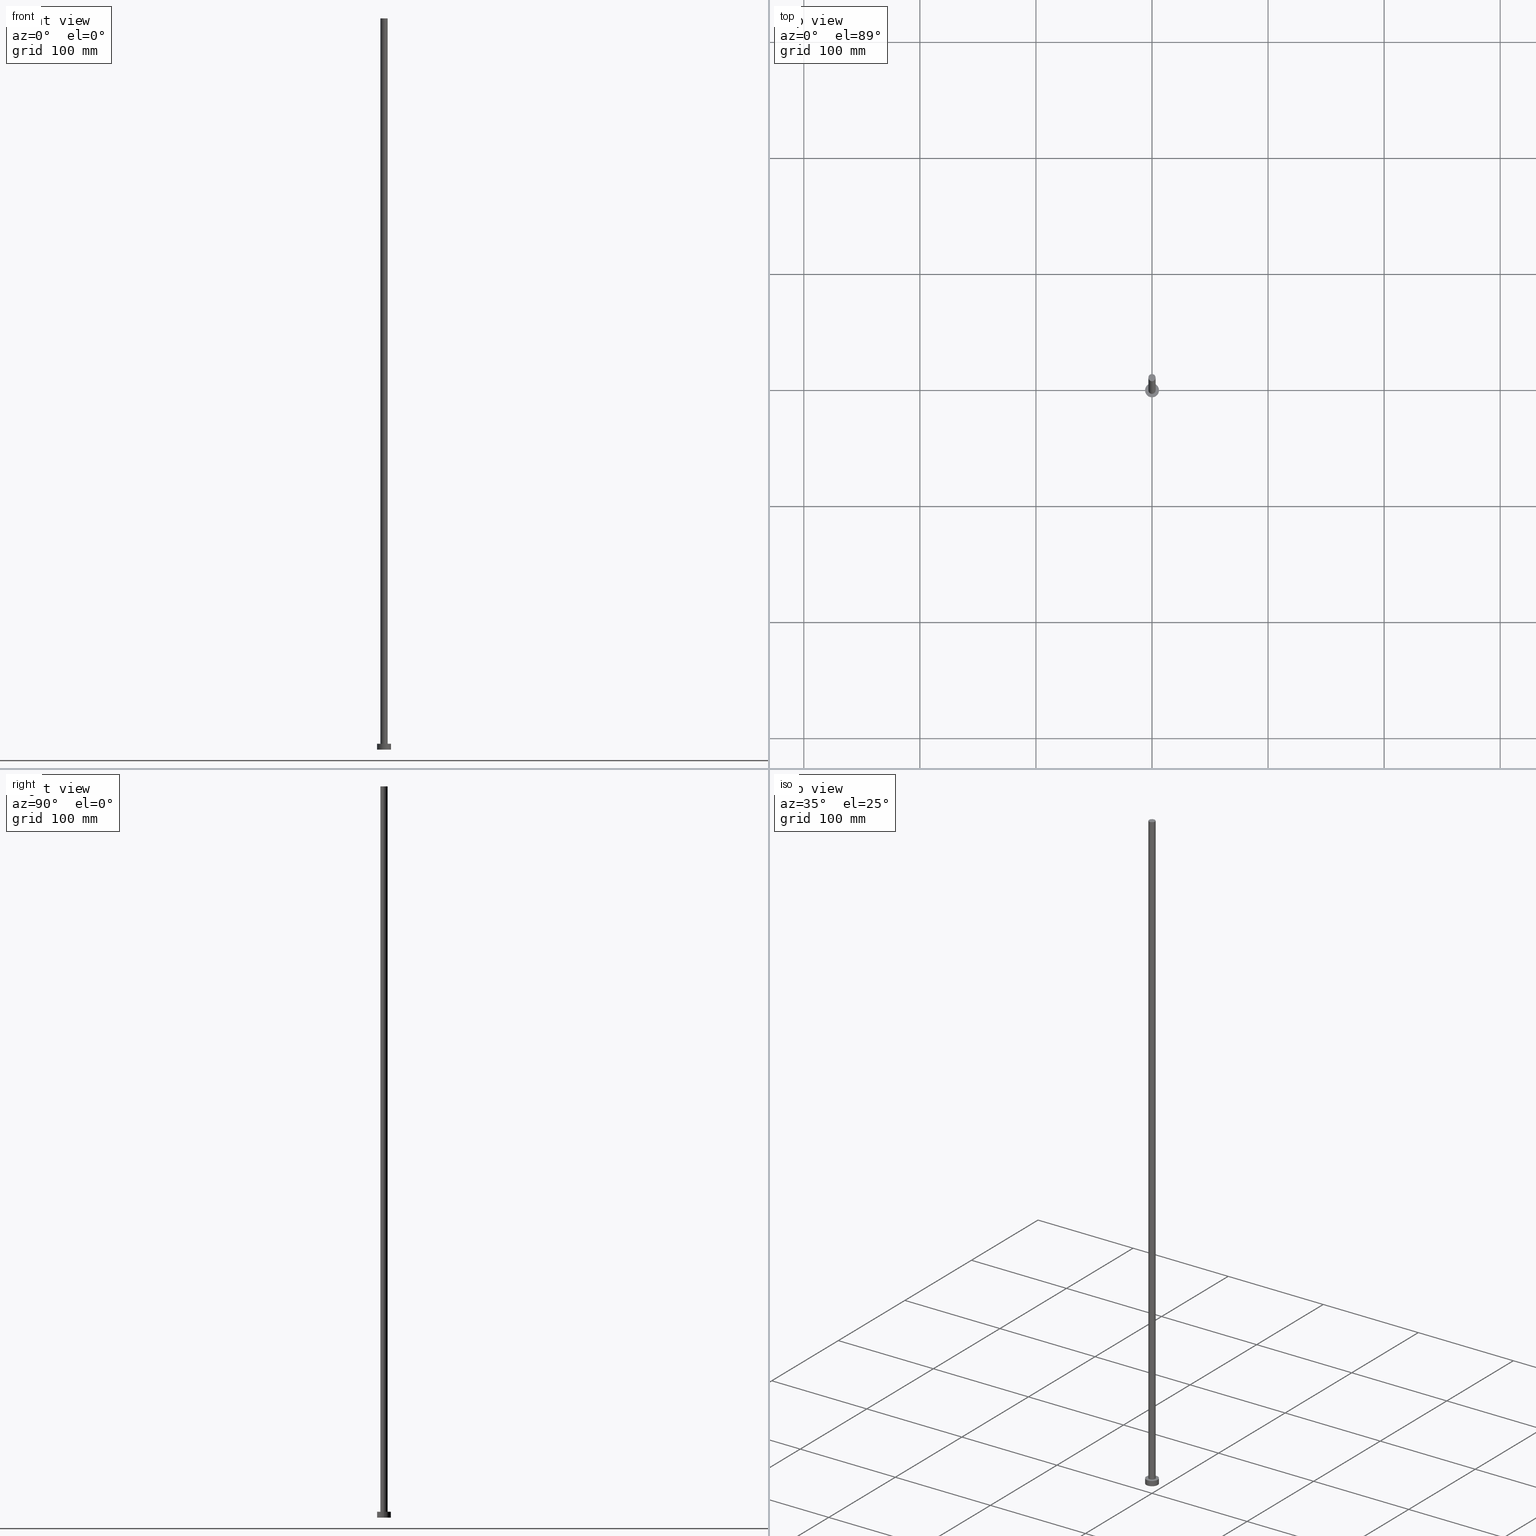
[diagram: canonical four-view strip — front | top / right | iso, engineering-drawing reading convention]
A machine part, canonical four-view strip (front | top / right | iso — engineering-drawing reading convention). The complete STEP part file that produces these views, byte-faithful:
ISO-10303-21;
HEADER;
FILE_DESCRIPTION (( 'STEP AP203' ),
    '1' );
FILE_NAME ('4c19.STEP',
    '2026-02-06T12:39:51',
    ( '' ),
    ( '' ),
    'SwSTEP 2.0',
    'SolidWorks 2019',
    '' );
FILE_SCHEMA (( 'CONFIG_CONTROL_DESIGN' ));
ENDSEC;

DATA;
#1 = VECTOR ( 'NONE', #219, 1000.000000000000000 ) ;
#2 = DIRECTION ( 'NONE',  ( 1.000000000000000000, 0.000000000000000000, 0.000000000000000000 ) ) ;
#3 = DATE_AND_TIME ( #58, #252 ) ;
#4 = ORIENTED_EDGE ( 'NONE', *, *, #133, .T. ) ;
#5 = CC_DESIGN_PERSON_AND_ORGANIZATION_ASSIGNMENT ( #139, #29, ( #70 ) ) ;
#6 = ORIENTED_EDGE ( 'NONE', *, *, #61, .F. ) ;
#7 = DATE_AND_TIME ( #103, #78 ) ;
#8 = ORIENTED_EDGE ( 'NONE', *, *, #104, .T. ) ;
#9 = DATE_TIME_ROLE ( 'creation_date' ) ;
#10 = AXIS2_PLACEMENT_3D ( 'NONE', #114, #112, #126 ) ;
#11 =( NAMED_UNIT ( * ) SI_UNIT ( $, .STERADIAN. ) SOLID_ANGLE_UNIT ( ) );
#12 = ORIENTED_EDGE ( 'NONE', *, *, #133, .F. ) ;
#13 = SECURITY_CLASSIFICATION_LEVEL ( 'unclassified' ) ;
#14 = APPROVAL_DATE_TIME ( #146, #221 ) ;
#15 = APPLICATION_CONTEXT ( 'configuration controlled 3d designs of mechanical parts and assemblies' ) ;
#16 = AXIS2_PLACEMENT_3D ( 'NONE', #94, #90, #208 ) ;
#17 = APPROVAL_DATE_TIME ( #187, #198 ) ;
#18 = ADVANCED_FACE ( 'NONE', ( #138 ), #84, .T. ) ;
#19 =( LENGTH_UNIT ( ) NAMED_UNIT ( * ) SI_UNIT ( .MILLI., .METRE. ) );
#20 = CC_DESIGN_PERSON_AND_ORGANIZATION_ASSIGNMENT ( #110, #160, ( #115 ) ) ;
#21 = CARTESIAN_POINT ( 'NONE',  ( 0.000000000000000000, 0.000000000000000000, 5.000000000000000000 ) ) ;
#22 = FACE_BOUND ( 'NONE', #243, .T. ) ;
#23 = CARTESIAN_POINT ( 'NONE',  ( 0.000000000000000000, 0.000000000000000000, 5.000000000000000000 ) ) ;
#24 = CARTESIAN_POINT ( 'NONE',  ( 0.000000000000000000, 0.000000000000000000, 5.000000000000000000 ) ) ;
#25 = CC_DESIGN_APPROVAL ( #221, ( #115 ) ) ;
#26 = PERSON_AND_ORGANIZATION ( #188, #230 ) ;
#27 = VERTEX_POINT ( 'NONE', #54 ) ;
#28 = ORIENTED_EDGE ( 'NONE', *, *, #86, .T. ) ;
#29 = PERSON_AND_ORGANIZATION_ROLE ( 'creator' ) ;
#30 = AXIS2_PLACEMENT_3D ( 'NONE', #23, #169, #55 ) ;
#31 = ORIENTED_EDGE ( 'NONE', *, *, #45, .F. ) ;
#32 = APPROVAL_STATUS ( 'not_yet_approved' ) ;
#33 =( NAMED_UNIT ( * ) PLANE_ANGLE_UNIT ( ) SI_UNIT ( $, .RADIAN. ) );
#34 = DATE_AND_TIME ( #183, #237 ) ;
#35 = CARTESIAN_POINT ( 'NONE',  ( -6.000000000000000888, 0.000000000000000000, 0.000000000000000000 ) ) ;
#36 = EDGE_CURVE ( 'NONE', #245, #162, #158, .T. ) ;
#37 = CC_DESIGN_DATE_AND_TIME_ASSIGNMENT ( #7, #9, ( #70 ) ) ;
#38 = FACE_OUTER_BOUND ( 'NONE', #229, .T. ) ;
#39 = DIRECTION ( 'NONE',  ( 1.000000000000000000, 0.000000000000000000, 0.000000000000000000 ) ) ;
#40 = LINE ( 'NONE', #42, #62 ) ;
#41 = COORDINATED_UNIVERSAL_TIME_OFFSET ( 1, 0, .AHEAD. ) ;
#42 = CARTESIAN_POINT ( 'NONE',  ( -3.100000000000000089, 0.000000000000000000, 630.0000000000000000 ) ) ;
#43 = VECTOR ( 'NONE', #191, 1000.000000000000000 ) ;
#44 = ORIENTED_EDGE ( 'NONE', *, *, #124, .T. ) ;
#45 = EDGE_CURVE ( 'NONE', #245, #203, #147, .T. ) ;
#46 = COORDINATED_UNIVERSAL_TIME_OFFSET ( 1, 0, .AHEAD. ) ;
#47 = VERTEX_POINT ( 'NONE', #255 ) ;
#48 = COORDINATED_UNIVERSAL_TIME_OFFSET ( 1, 0, .AHEAD. ) ;
#49 = VECTOR ( 'NONE', #73, 1000.000000000000000 ) ;
#50 = PERSON_AND_ORGANIZATION ( #188, #230 ) ;
#51 = PERSON_AND_ORGANIZATION_ROLE ( 'design_supplier' ) ;
#52 = CARTESIAN_POINT ( 'NONE',  ( -3.100000000000000089, 0.000000000000000000, 630.0000000000000000 ) ) ;
#53 = DIRECTION ( 'NONE',  ( 1.000000000000000000, 0.000000000000000000, 0.000000000000000000 ) ) ;
#54 = CARTESIAN_POINT ( 'NONE',  ( 3.100000000000000089, 3.796405077356794918E-16, 630.0000000000000000 ) ) ;
#55 = DIRECTION ( 'NONE',  ( -1.000000000000000000, 0.000000000000000000, 0.000000000000000000 ) ) ;
#56 = CARTESIAN_POINT ( 'NONE',  ( -6.000000000000000888, 0.000000000000000000, 5.000000000000000000 ) ) ;
#57 = CYLINDRICAL_SURFACE ( 'NONE', #72, 3.100000000000000089 ) ;
#58 = CALENDAR_DATE ( 2026, 6, 2 ) ;
#59 = DIRECTION ( 'NONE',  ( 0.000000000000000000, 0.000000000000000000, 1.000000000000000000 ) ) ;
#60 = ORIENTED_EDGE ( 'NONE', *, *, #111, .T. ) ;
#61 = EDGE_CURVE ( 'NONE', #27, #47, #119, .T. ) ;
#62 = VECTOR ( 'NONE', #134, 1000.000000000000000 ) ;
#63 = APPROVAL_STATUS ( 'not_yet_approved' ) ;
#64 = ADVANCED_FACE ( 'NONE', ( #95 ), #57, .T. ) ;
#65 = EDGE_LOOP ( 'NONE', ( #8, #185 ) ) ;
#66 = EDGE_LOOP ( 'NONE', ( #226, #12 ) ) ;
#67 = AXIS2_PLACEMENT_3D ( 'NONE', #98, #74, #118 ) ;
#68 = DIRECTION ( 'NONE',  ( 0.000000000000000000, 0.000000000000000000, 1.000000000000000000 ) ) ;
#69 = CALENDAR_DATE ( 2026, 6, 2 ) ;
#70 = PRODUCT_DEFINITION ( 'NEZN�M�', '', #115, #154 ) ;
#71 = DIRECTION ( 'NONE',  ( 0.000000000000000000, 0.000000000000000000, 1.000000000000000000 ) ) ;
#72 = AXIS2_PLACEMENT_3D ( 'NONE', #235, #130, #215 ) ;
#73 = DIRECTION ( 'NONE',  ( -0.000000000000000000, -0.000000000000000000, -1.000000000000000000 ) ) ;
#74 = DIRECTION ( 'NONE',  ( 0.000000000000000000, 0.000000000000000000, 1.000000000000000000 ) ) ;
#75 = EDGE_CURVE ( 'NONE', #162, #176, #249, .T. ) ;
#76 = DIRECTION ( 'NONE',  ( 0.000000000000000000, 0.000000000000000000, 1.000000000000000000 ) ) ;
#77 = DIRECTION ( 'NONE',  ( 0.000000000000000000, 0.000000000000000000, 1.000000000000000000 ) ) ;
#78 = LOCAL_TIME ( 13, 39, 51.00000000000000000, #46 ) ;
#79 = CC_DESIGN_PERSON_AND_ORGANIZATION_ASSIGNMENT ( #157, #81, ( #96 ) ) ;
#80 = CIRCLE ( 'NONE', #117, 3.100000000000000089 ) ;
#81 = PERSON_AND_ORGANIZATION_ROLE ( 'design_owner' ) ;
#82 = AXIS2_PLACEMENT_3D ( 'NONE', #231, #68, #53 ) ;
#83 = ORIENTED_EDGE ( 'NONE', *, *, #150, .T. ) ;
#84 = CYLINDRICAL_SURFACE ( 'NONE', #30, 6.000000000000000888 ) ;
#85 = ORIENTED_EDGE ( 'NONE', *, *, #75, .T. ) ;
#86 = EDGE_CURVE ( 'NONE', #177, #107, #40, .T. ) ;
#87 = EDGE_LOOP ( 'NONE', ( #225, #102, #4, #181 ) ) ;
#88 = CC_DESIGN_SECURITY_CLASSIFICATION ( #163, ( #115 ) ) ;
#89 = PLANE ( 'NONE',  #242 ) ;
#90 = DIRECTION ( 'NONE',  ( -0.000000000000000000, -0.000000000000000000, -1.000000000000000000 ) ) ;
#91 = APPROVAL_ROLE ( '' ) ;
#92 = FACE_OUTER_BOUND ( 'NONE', #178, .T. ) ;
#93 = DIRECTION ( 'NONE',  ( 0.000000000000000000, 0.000000000000000000, 1.000000000000000000 ) ) ;
#94 = CARTESIAN_POINT ( 'NONE',  ( 0.000000000000000000, 0.000000000000000000, 630.0000000000000000 ) ) ;
#95 = FACE_OUTER_BOUND ( 'NONE', #202, .T. ) ;
#96 = PRODUCT ( '4c19', '4c19', '', ( #99 ) ) ;
#97 = PLANE ( 'NONE',  #179 ) ;
#98 = CARTESIAN_POINT ( 'NONE',  ( 0.000000000000000000, 0.000000000000000000, 0.000000000000000000 ) ) ;
#99 = MECHANICAL_CONTEXT ( 'NONE', #15, 'mechanical' ) ;
#100 = ADVANCED_FACE ( 'NONE', ( #22, #38 ), #97, .T. ) ;
#101 = ORIENTED_EDGE ( 'NONE', *, *, #111, .F. ) ;
#102 = ORIENTED_EDGE ( 'NONE', *, *, #45, .T. ) ;
#103 = CALENDAR_DATE ( 2026, 6, 2 ) ;
#104 = EDGE_CURVE ( 'NONE', #177, #27, #222, .T. ) ;
#105 = CIRCLE ( 'NONE', #205, 3.100000000000000089 ) ;
#106 = COORDINATED_UNIVERSAL_TIME_OFFSET ( 1, 0, .AHEAD. ) ;
#107 = VERTEX_POINT ( 'NONE', #171 ) ;
#108 = DATE_TIME_ROLE ( 'classification_date' ) ;
#109 = FACE_OUTER_BOUND ( 'NONE', #66, .T. ) ;
#110 = PERSON_AND_ORGANIZATION ( #188, #230 ) ;
#111 = EDGE_CURVE ( 'NONE', #107, #47, #105, .T. ) ;
#112 = DIRECTION ( 'NONE',  ( -0.000000000000000000, -0.000000000000000000, -1.000000000000000000 ) ) ;
#113 = COORDINATED_UNIVERSAL_TIME_OFFSET ( 1, 0, .AHEAD. ) ;
#114 = CARTESIAN_POINT ( 'NONE',  ( 0.000000000000000000, 0.000000000000000000, 5.000000000000000000 ) ) ;
#115 = PRODUCT_DEFINITION_FORMATION_WITH_SPECIFIED_SOURCE ( 'LIBOVOLN�', '', #96, .NOT_KNOWN. ) ;
#116 = CARTESIAN_POINT ( 'NONE',  ( 0.000000000000000000, 0.000000000000000000, 5.000000000000000000 ) ) ;
#117 = AXIS2_PLACEMENT_3D ( 'NONE', #238, #213, #251 ) ;
#118 = DIRECTION ( 'NONE',  ( 1.000000000000000000, 0.000000000000000000, 0.000000000000000000 ) ) ;
#119 = LINE ( 'NONE', #152, #1 ) ;
#120 = DIRECTION ( 'NONE',  ( 1.000000000000000000, 0.000000000000000000, -0.000000000000000000 ) ) ;
#121 = UNCERTAINTY_MEASURE_WITH_UNIT (LENGTH_MEASURE( 1.000000000000000082E-05 ), #19, 'distance_accuracy_value', 'NONE');
#122 = ORIENTED_EDGE ( 'NONE', *, *, #150, .F. ) ;
#123 = APPROVAL_DATE_TIME ( #3, #211 ) ;
#124 = EDGE_CURVE ( 'NONE', #162, #245, #250, .T. ) ;
#125 = ORIENTED_EDGE ( 'NONE', *, *, #241, .T. ) ;
#126 = DIRECTION ( 'NONE',  ( -1.000000000000000000, 0.000000000000000000, 0.000000000000000000 ) ) ;
#127 = CALENDAR_DATE ( 2026, 6, 2 ) ;
#128 = CYLINDRICAL_SURFACE ( 'NONE', #10, 6.000000000000000888 ) ;
#129 = CARTESIAN_POINT ( 'NONE',  ( 6.000000000000000888, 7.347880794884120722E-16, 5.000000000000000000 ) ) ;
#130 = DIRECTION ( 'NONE',  ( -0.000000000000000000, -0.000000000000000000, -1.000000000000000000 ) ) ;
#131 = EDGE_CURVE ( 'NONE', #27, #177, #80, .T. ) ;
#132 = CARTESIAN_POINT ( 'NONE',  ( 0.000000000000000000, 0.000000000000000000, 5.000000000000000000 ) ) ;
#133 = EDGE_CURVE ( 'NONE', #203, #176, #175, .T. ) ;
#134 = DIRECTION ( 'NONE',  ( -0.000000000000000000, -0.000000000000000000, -1.000000000000000000 ) ) ;
#135 = AXIS2_PLACEMENT_3D ( 'NONE', #153, #77, #192 ) ;
#136 = CARTESIAN_POINT ( 'NONE',  ( 0.000000000000000000, 0.000000000000000000, 0.000000000000000000 ) ) ;
#137 = APPROVAL_ROLE ( '' ) ;
#138 = FACE_OUTER_BOUND ( 'NONE', #209, .T. ) ;
#139 = PERSON_AND_ORGANIZATION ( #188, #230 ) ;
#140 = CC_DESIGN_PERSON_AND_ORGANIZATION_ASSIGNMENT ( #207, #51, ( #115 ) ) ;
#141 = APPROVAL_PERSON_ORGANIZATION ( #26, #221, #164 ) ;
#142 = ORIENTED_EDGE ( 'NONE', *, *, #131, .F. ) ;
#143 = ORIENTED_EDGE ( 'NONE', *, *, #104, .F. ) ;
#144 = PERSON_AND_ORGANIZATION ( #188, #230 ) ;
#145 = DIRECTION ( 'NONE',  ( 0.000000000000000000, 0.000000000000000000, 1.000000000000000000 ) ) ;
#146 = DATE_AND_TIME ( #127, #156 ) ;
#147 = LINE ( 'NONE', #217, #43 ) ;
#148 = CARTESIAN_POINT ( 'NONE',  ( 6.000000000000000888, 7.347880794884120722E-16, 0.000000000000000000 ) ) ;
#149 = CARTESIAN_POINT ( 'NONE',  ( 0.000000000000000000, 0.000000000000000000, 630.0000000000000000 ) ) ;
#150 = EDGE_CURVE ( 'NONE', #47, #107, #218, .T. ) ;
#151 = CC_DESIGN_PERSON_AND_ORGANIZATION_ASSIGNMENT ( #50, #212, ( #163 ) ) ;
#152 = CARTESIAN_POINT ( 'NONE',  ( 3.100000000000000089, 3.796405077356794918E-16, 630.0000000000000000 ) ) ;
#153 = CARTESIAN_POINT ( 'NONE',  ( 0.000000000000000000, 0.000000000000000000, 5.000000000000000000 ) ) ;
#154 = DESIGN_CONTEXT ( 'detailed design', #216, 'design' ) ;
#155 = APPLICATION_PROTOCOL_DEFINITION ( 'international standard', 'config_control_design', 1994, #15 ) ;
#156 = LOCAL_TIME ( 13, 39, 51.00000000000000000, #48 ) ;
#157 = PERSON_AND_ORGANIZATION ( #188, #230 ) ;
#158 = CIRCLE ( 'NONE', #165, 6.000000000000000888 ) ;
#159 = ORIENTED_EDGE ( 'NONE', *, *, #86, .F. ) ;
#160 = PERSON_AND_ORGANIZATION_ROLE ( 'creator' ) ;
#161 = DIRECTION ( 'NONE',  ( 1.000000000000000000, 0.000000000000000000, -0.000000000000000000 ) ) ;
#162 = VERTEX_POINT ( 'NONE', #56 ) ;
#163 = SECURITY_CLASSIFICATION ( '', '', #13 ) ;
#164 = APPROVAL_ROLE ( '' ) ;
#165 = AXIS2_PLACEMENT_3D ( 'NONE', #21, #93, #239 ) ;
#166 = APPROVAL_STATUS ( 'not_yet_approved' ) ;
#167 = DIRECTION ( 'NONE',  ( 1.000000000000000000, 0.000000000000000000, -0.000000000000000000 ) ) ;
#168 = CC_DESIGN_DATE_AND_TIME_ASSIGNMENT ( #34, #108, ( #163 ) ) ;
#169 = DIRECTION ( 'NONE',  ( -0.000000000000000000, -0.000000000000000000, -1.000000000000000000 ) ) ;
#170 = CLOSED_SHELL ( 'NONE', ( #64, #184, #18, #100, #236, #206, #228 ) ) ;
#171 = CARTESIAN_POINT ( 'NONE',  ( -3.100000000000000089, 0.000000000000000000, 5.000000000000000000 ) ) ;
#172 = LOCAL_TIME ( 13, 39, 51.00000000000000000, #113 ) ;
#173 = FACE_OUTER_BOUND ( 'NONE', #87, .T. ) ;
#174 = ADVANCED_BREP_SHAPE_REPRESENTATION ( '4c19', ( #204, #199 ), #214 ) ;
#175 = CIRCLE ( 'NONE', #67, 6.000000000000000888 ) ;
#176 = VERTEX_POINT ( 'NONE', #35 ) ;
#177 = VERTEX_POINT ( 'NONE', #52 ) ;
#178 = EDGE_LOOP ( 'NONE', ( #6, #143, #28, #60 ) ) ;
#179 = AXIS2_PLACEMENT_3D ( 'NONE', #132, #76, #120 ) ;
#180 = SHAPE_DEFINITION_REPRESENTATION ( #254, #174 ) ;
#181 = ORIENTED_EDGE ( 'NONE', *, *, #75, .F. ) ;
#182 = AXIS2_PLACEMENT_3D ( 'NONE', #247, #210, #161 ) ;
#183 = CALENDAR_DATE ( 2026, 6, 2 ) ;
#184 = ADVANCED_FACE ( 'NONE', ( #173 ), #128, .T. ) ;
#185 = ORIENTED_EDGE ( 'NONE', *, *, #131, .T. ) ;
#186 = PLANE ( 'NONE',  #182 ) ;
#187 = DATE_AND_TIME ( #69, #172 ) ;
#188 = PERSON ( 'NEUR�EN�', 'NEUR�EN�', 'NEUR�EN�', ('NEUR�EN�'), ('NEUR�EN�'), ('NEUR�EN�') ) ;
#189 = FACE_OUTER_BOUND ( 'NONE', #65, .T. ) ;
#190 = CC_DESIGN_APPROVAL ( #211, ( #70 ) ) ;
#191 = DIRECTION ( 'NONE',  ( -0.000000000000000000, -0.000000000000000000, -1.000000000000000000 ) ) ;
#192 = DIRECTION ( 'NONE',  ( 1.000000000000000000, 0.000000000000000000, 0.000000000000000000 ) ) ;
#193 = AXIS2_PLACEMENT_3D ( 'NONE', #197, #248, #39 ) ;
#194 = DIRECTION ( 'NONE',  ( 0.000000000000000000, 0.000000000000000000, 1.000000000000000000 ) ) ;
#195 = CIRCLE ( 'NONE', #82, 6.000000000000000888 ) ;
#196 = CARTESIAN_POINT ( 'NONE',  ( -6.000000000000000888, 0.000000000000000000, 5.000000000000000000 ) ) ;
#197 = CARTESIAN_POINT ( 'NONE',  ( 0.000000000000000000, 0.000000000000000000, 630.0000000000000000 ) ) ;
#198 = APPROVAL ( #166, 'NEUR�EN�' ) ;
#199 = AXIS2_PLACEMENT_3D ( 'NONE', #136, #59, #2 ) ;
#200 = CC_DESIGN_APPROVAL ( #198, ( #163 ) ) ;
#201 = ORIENTED_EDGE ( 'NONE', *, *, #36, .T. ) ;
#202 = EDGE_LOOP ( 'NONE', ( #142, #227, #83, #159 ) ) ;
#203 = VERTEX_POINT ( 'NONE', #148 ) ;
#204 = MANIFOLD_SOLID_BREP ( 'P�idat vysunut�m3', #170 ) ;
#205 = AXIS2_PLACEMENT_3D ( 'NONE', #116, #71, #232 ) ;
#206 = ADVANCED_FACE ( 'NONE', ( #92 ), #233, .T. ) ;
#207 = PERSON_AND_ORGANIZATION ( #188, #230 ) ;
#208 = DIRECTION ( 'NONE',  ( -1.000000000000000000, 0.000000000000000000, 0.000000000000000000 ) ) ;
#209 = EDGE_LOOP ( 'NONE', ( #31, #223, #85, #125 ) ) ;
#210 = DIRECTION ( 'NONE',  ( 0.000000000000000000, 0.000000000000000000, 1.000000000000000000 ) ) ;
#211 = APPROVAL ( #63, 'NEUR�EN�' ) ;
#212 = PERSON_AND_ORGANIZATION_ROLE ( 'classification_officer' ) ;
#213 = DIRECTION ( 'NONE',  ( 0.000000000000000000, 0.000000000000000000, 1.000000000000000000 ) ) ;
#214 =( GEOMETRIC_REPRESENTATION_CONTEXT ( 3 ) GLOBAL_UNCERTAINTY_ASSIGNED_CONTEXT ( ( #121 ) ) GLOBAL_UNIT_ASSIGNED_CONTEXT ( ( #19, #33, #11 ) ) REPRESENTATION_CONTEXT ( 'NONE', 'WORKASPACE' ) );
#215 = DIRECTION ( 'NONE',  ( -1.000000000000000000, 0.000000000000000000, 0.000000000000000000 ) ) ;
#216 = APPLICATION_CONTEXT ( 'configuration controlled 3d designs of mechanical parts and assemblies' ) ;
#217 = CARTESIAN_POINT ( 'NONE',  ( 6.000000000000000888, 7.347880794884120722E-16, 5.000000000000000000 ) ) ;
#218 = CIRCLE ( 'NONE', #246, 3.100000000000000089 ) ;
#219 = DIRECTION ( 'NONE',  ( -0.000000000000000000, -0.000000000000000000, -1.000000000000000000 ) ) ;
#220 = APPLICATION_PROTOCOL_DEFINITION ( 'international standard', 'config_control_design', 1994, #216 ) ;
#221 = APPROVAL ( #32, 'NEUR�EN�' ) ;
#222 = CIRCLE ( 'NONE', #193, 3.100000000000000089 ) ;
#223 = ORIENTED_EDGE ( 'NONE', *, *, #124, .F. ) ;
#224 = APPROVAL_PERSON_ORGANIZATION ( #144, #198, #91 ) ;
#225 = ORIENTED_EDGE ( 'NONE', *, *, #36, .F. ) ;
#226 = ORIENTED_EDGE ( 'NONE', *, *, #241, .F. ) ;
#227 = ORIENTED_EDGE ( 'NONE', *, *, #61, .T. ) ;
#228 = ADVANCED_FACE ( 'NONE', ( #189 ), #89, .T. ) ;
#229 = EDGE_LOOP ( 'NONE', ( #44, #201 ) ) ;
#230 = ORGANIZATION ( 'NEUR�EN�', 'NEUR�EN�', '' ) ;
#231 = CARTESIAN_POINT ( 'NONE',  ( 0.000000000000000000, 0.000000000000000000, 0.000000000000000000 ) ) ;
#232 = DIRECTION ( 'NONE',  ( 1.000000000000000000, 0.000000000000000000, 0.000000000000000000 ) ) ;
#233 = CYLINDRICAL_SURFACE ( 'NONE', #16, 3.100000000000000089 ) ;
#234 = APPROVAL_PERSON_ORGANIZATION ( #240, #211, #137 ) ;
#235 = CARTESIAN_POINT ( 'NONE',  ( 0.000000000000000000, 0.000000000000000000, 630.0000000000000000 ) ) ;
#236 = ADVANCED_FACE ( 'NONE', ( #109 ), #186, .F. ) ;
#237 = LOCAL_TIME ( 13, 39, 51.00000000000000000, #106 ) ;
#238 = CARTESIAN_POINT ( 'NONE',  ( 0.000000000000000000, 0.000000000000000000, 630.0000000000000000 ) ) ;
#239 = DIRECTION ( 'NONE',  ( 1.000000000000000000, 0.000000000000000000, 0.000000000000000000 ) ) ;
#240 = PERSON_AND_ORGANIZATION ( #188, #230 ) ;
#241 = EDGE_CURVE ( 'NONE', #176, #203, #195, .T. ) ;
#242 = AXIS2_PLACEMENT_3D ( 'NONE', #149, #145, #167 ) ;
#243 = EDGE_LOOP ( 'NONE', ( #101, #122 ) ) ;
#244 = PRODUCT_RELATED_PRODUCT_CATEGORY ( 'detail', '', ( #96 ) ) ;
#245 = VERTEX_POINT ( 'NONE', #129 ) ;
#246 = AXIS2_PLACEMENT_3D ( 'NONE', #24, #194, #253 ) ;
#247 = CARTESIAN_POINT ( 'NONE',  ( 0.000000000000000000, 0.000000000000000000, 0.000000000000000000 ) ) ;
#248 = DIRECTION ( 'NONE',  ( 0.000000000000000000, 0.000000000000000000, 1.000000000000000000 ) ) ;
#249 = LINE ( 'NONE', #196, #49 ) ;
#250 = CIRCLE ( 'NONE', #135, 6.000000000000000888 ) ;
#251 = DIRECTION ( 'NONE',  ( 1.000000000000000000, 0.000000000000000000, 0.000000000000000000 ) ) ;
#252 = LOCAL_TIME ( 13, 39, 51.00000000000000000, #41 ) ;
#253 = DIRECTION ( 'NONE',  ( 1.000000000000000000, 0.000000000000000000, 0.000000000000000000 ) ) ;
#254 = PRODUCT_DEFINITION_SHAPE ( 'NONE', 'NONE',  #70 ) ;
#255 = CARTESIAN_POINT ( 'NONE',  ( 3.100000000000000089, 3.796405077356794918E-16, 5.000000000000000000 ) ) ;
ENDSEC;
END-ISO-10303-21;
